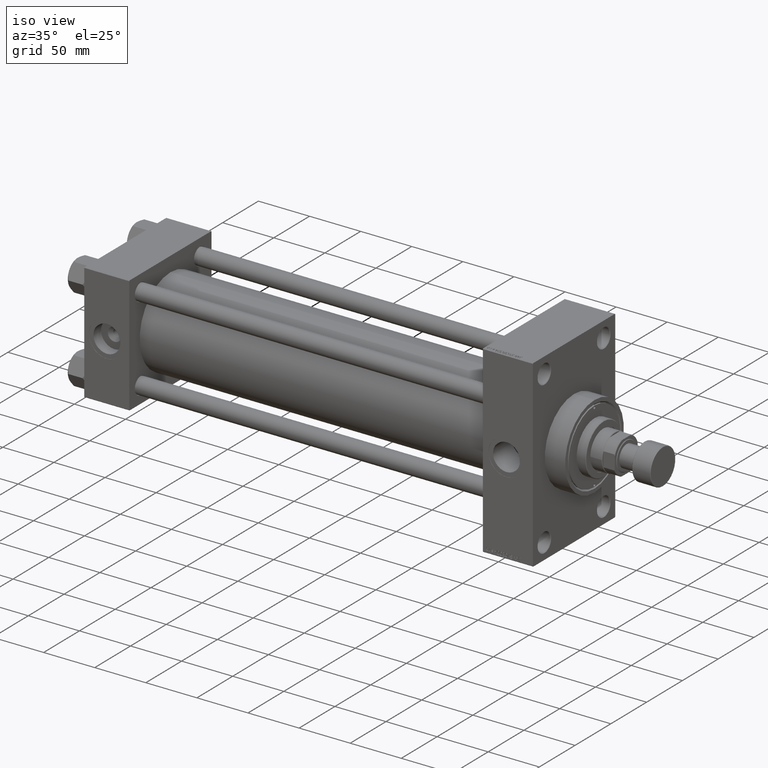
[diagram: clean part render]
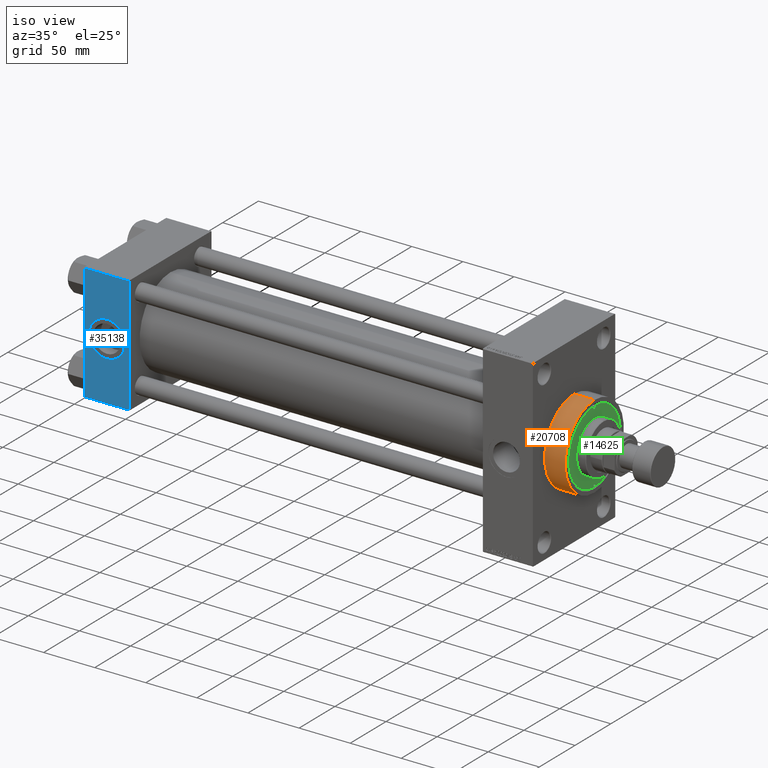
[diagram: same view with three faces highlighted in distinct colors, each labeled with its STEP entity id]
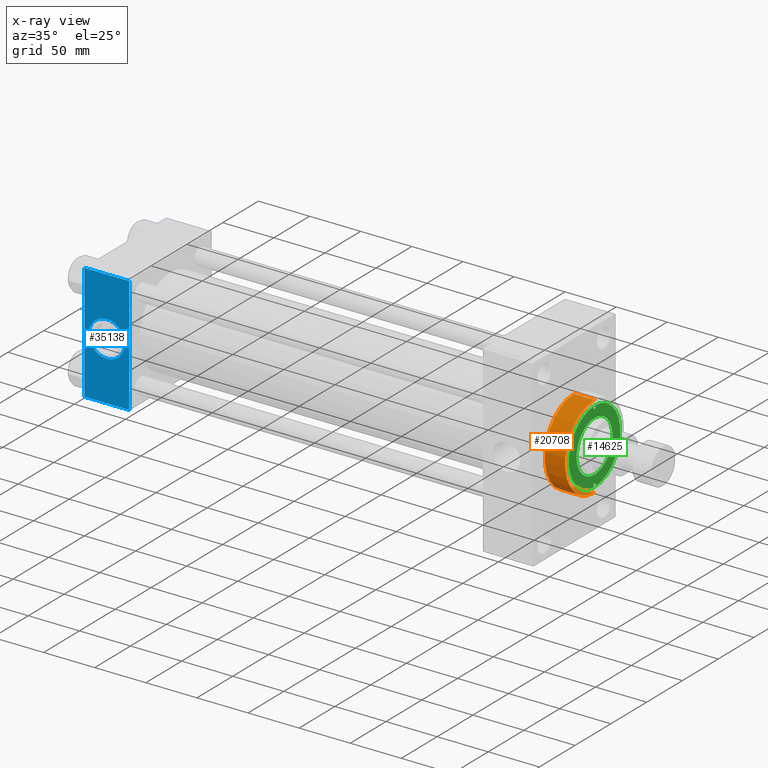
[diagram: x-ray of the same camera — body ghosted, the three highlighted faces saturated]
A machine part, iso view with three faces highlighted in distinct colors.
The next image is the same camera in x-ray (body ghosted, the three faces saturated) — at least one of them is partly hidden behind the body in this view.
Their STEP definitions:

[orange] entity #20708 — the highlighted cylindrical surface (partial cylindrical patch) has radius 41 mm, axis along (-1, -0, -0).
#668 = ORIENTED_EDGE ( 'NONE', *, *, #40381, .F. ) ;
#1769 = DIRECTION ( 'NONE',  ( 0.000000000000000000, 0.000000000000000000, -1.000000000000000000 ) ) ;
#3361 = EDGE_CURVE ( 'NONE', #35525, #23712, #6730, .T. ) ;
#6730 = CIRCLE ( 'NONE', #34049, 41.00000000000000000 ) ;
#8056 = CIRCLE ( 'NONE', #10404, 41.00000000000000000 ) ;
#10308 = VERTEX_POINT ( 'NONE', #10576 ) ;
#10404 = AXIS2_PLACEMENT_3D ( 'NONE', #20833, #38691, #1769 ) ;
#10541 = DIRECTION ( 'NONE',  ( 1.000000000000000000, 0.000000000000000000, 0.000000000000000000 ) ) ;
#10576 = CARTESIAN_POINT ( 'NONE',  ( 458.9999999999999432, 0.000000000000000000, 41.00000000000000000 ) ) ;
#11253 = DIRECTION ( 'NONE',  ( 0.000000000000000000, 0.000000000000000000, -1.000000000000000000 ) ) ;
#11438 = ORIENTED_EDGE ( 'NONE', *, *, #3361, .T. ) ;
#11854 = LINE ( 'NONE', #31152, #43428 ) ;
#14266 = VECTOR ( 'NONE', #36025, 1000.000000000000000 ) ;
#20708 = ADVANCED_FACE ( 'NONE', ( #26117 ), #26595, .T. ) ;
#20833 = CARTESIAN_POINT ( 'NONE',  ( 458.9999999999999432, 0.000000000000000000, 0.000000000000000000 ) ) ;
#20851 = VERTEX_POINT ( 'NONE', #28294 ) ;
#20883 = CARTESIAN_POINT ( 'NONE',  ( 458.9999999999999432, 5.021051876504148963E-15, -41.00000000000000000 ) ) ;
#21763 = CARTESIAN_POINT ( 'NONE',  ( 438.9999999999999432, 0.000000000000000000, 0.000000000000000000 ) ) ;
#22450 = CARTESIAN_POINT ( 'NONE',  ( 458.9999999999999432, 0.000000000000000000, 0.000000000000000000 ) ) ;
#22687 = DIRECTION ( 'NONE',  ( -1.000000000000000000, -0.000000000000000000, -0.000000000000000000 ) ) ;
#23255 = ORIENTED_EDGE ( 'NONE', *, *, #40680, .F. ) ;
#23712 = VERTEX_POINT ( 'NONE', #32615 ) ;
#24198 = ORIENTED_EDGE ( 'NONE', *, *, #47370, .T. ) ;
#25910 = CARTESIAN_POINT ( 'NONE',  ( 438.9999999999999432, 0.000000000000000000, 41.00000000000000000 ) ) ;
#26117 = FACE_OUTER_BOUND ( 'NONE', #41275, .T. ) ;
#26595 = CYLINDRICAL_SURFACE ( 'NONE', #40944, 41.00000000000000000 ) ;
#28294 = CARTESIAN_POINT ( 'NONE',  ( 458.9999999999999432, 5.021051876504148963E-15, -41.00000000000000000 ) ) ;
#31152 = CARTESIAN_POINT ( 'NONE',  ( 458.9999999999999432, 0.000000000000000000, 41.00000000000000000 ) ) ;
#32615 = CARTESIAN_POINT ( 'NONE',  ( 438.9999999999999432, 5.021051876504148963E-15, -41.00000000000000000 ) ) ;
#34049 = AXIS2_PLACEMENT_3D ( 'NONE', #21763, #10541, #11253 ) ;
#35525 = VERTEX_POINT ( 'NONE', #25910 ) ;
#36025 = DIRECTION ( 'NONE',  ( -1.000000000000000000, -0.000000000000000000, -0.000000000000000000 ) ) ;
#37609 = DIRECTION ( 'NONE',  ( 0.000000000000000000, 0.000000000000000000, 1.000000000000000000 ) ) ;
#38691 = DIRECTION ( 'NONE',  ( 1.000000000000000000, 0.000000000000000000, 0.000000000000000000 ) ) ;
#39701 = LINE ( 'NONE', #20883, #14266 ) ;
#40381 = EDGE_CURVE ( 'NONE', #20851, #23712, #39701, .T. ) ;
#40680 = EDGE_CURVE ( 'NONE', #10308, #20851, #8056, .T. ) ;
#40944 = AXIS2_PLACEMENT_3D ( 'NONE', #22450, #22687, #37609 ) ;
#41275 = EDGE_LOOP ( 'NONE', ( #668, #23255, #24198, #11438 ) ) ;
#42171 = DIRECTION ( 'NONE',  ( -1.000000000000000000, -0.000000000000000000, -0.000000000000000000 ) ) ;
#43428 = VECTOR ( 'NONE', #42171, 1000.000000000000000 ) ;
#47370 = EDGE_CURVE ( 'NONE', #10308, #35525, #11854, .T. ) ;

[blue] entity #35138 — the highlighted planar face has unit normal (0, 1, 0).
#333 = CIRCLE ( 'NONE', #37013, 17.50000000000000000 ) ;
#924 = CARTESIAN_POINT ( 'NONE',  ( 0.000000000000000000, -57.50000000000000711, 57.00000000000000711 ) ) ;
#1328 = LINE ( 'NONE', #16970, #44609 ) ;
#1760 = AXIS2_PLACEMENT_3D ( 'NONE', #3243, #36736, #33065 ) ;
#2125 = AXIS2_PLACEMENT_3D ( 'NONE', #7798, #14659, #22701 ) ;
#2180 = EDGE_CURVE ( 'NONE', #7587, #27227, #36262, .T. ) ;
#3243 = CARTESIAN_POINT ( 'NONE',  ( 44.00000000000000000, -57.50000000000000711, 57.49999999999999289 ) ) ;
#4780 = VECTOR ( 'NONE', #47800, 1000.000000000000000 ) ;
#5966 = CARTESIAN_POINT ( 'NONE',  ( 44.00000000000000000, -57.50000000000000711, -57.00000000000000711 ) ) ;
#7114 = CARTESIAN_POINT ( 'NONE',  ( 22.00000000000000000, -57.50000000000000711, 0.000000000000000000 ) ) ;
#7572 = ORIENTED_EDGE ( 'NONE', *, *, #12123, .T. ) ;
#7587 = VERTEX_POINT ( 'NONE', #32153 ) ;
#7798 = CARTESIAN_POINT ( 'NONE',  ( 22.00000000000000000, -57.50000000000000711, 0.000000000000000000 ) ) ;
#7880 = FACE_BOUND ( 'NONE', #37196, .T. ) ;
#10230 = EDGE_CURVE ( 'NONE', #23224, #7587, #1328, .T. ) ;
#11019 = VERTEX_POINT ( 'NONE', #33169 ) ;
#12123 = EDGE_CURVE ( 'NONE', #18617, #23224, #22362, .T. ) ;
#12568 = DIRECTION ( 'NONE',  ( 0.000000000000000000, 0.000000000000000000, -1.000000000000000000 ) ) ;
#14659 = DIRECTION ( 'NONE',  ( 0.000000000000000000, -1.000000000000000000, -8.673617379884036705E-17 ) ) ;
#15034 = CARTESIAN_POINT ( 'NONE',  ( 44.00000000000000000, -57.50000000000000711, 57.00000000000000711 ) ) ;
#16970 = CARTESIAN_POINT ( 'NONE',  ( 0.000000000000000000, -57.50000000000000711, 57.49999999999999289 ) ) ;
#18170 = FACE_OUTER_BOUND ( 'NONE', #35352, .T. ) ;
#18617 = VERTEX_POINT ( 'NONE', #38083 ) ;
#18682 = CARTESIAN_POINT ( 'NONE',  ( 44.00000000000000000, -57.50000000000000711, 57.49999999999999289 ) ) ;
#21470 = ORIENTED_EDGE ( 'NONE', *, *, #10230, .T. ) ;
#21815 = PLANE ( 'NONE',  #1760 ) ;
#22022 = DIRECTION ( 'NONE',  ( 0.000000000000000000, -1.000000000000000000, -8.673617379884036705E-17 ) ) ;
#22362 = LINE ( 'NONE', #15034, #4780 ) ;
#22701 = DIRECTION ( 'NONE',  ( 0.000000000000000000, 0.000000000000000000, -1.000000000000000000 ) ) ;
#23224 = VERTEX_POINT ( 'NONE', #924 ) ;
#24628 = VECTOR ( 'NONE', #36018, 1000.000000000000000 ) ;
#26650 = EDGE_CURVE ( 'NONE', #18617, #27227, #32665, .T. ) ;
#27052 = ORIENTED_EDGE ( 'NONE', *, *, #26650, .F. ) ;
#27227 = VERTEX_POINT ( 'NONE', #47956 ) ;
#27286 = CARTESIAN_POINT ( 'NONE',  ( 22.00000000000000000, -57.50000000000000711, -17.50000000000000000 ) ) ;
#29994 = ORIENTED_EDGE ( 'NONE', *, *, #2180, .T. ) ;
#30068 = EDGE_CURVE ( 'NONE', #11019, #44879, #37245, .T. ) ;
#32153 = CARTESIAN_POINT ( 'NONE',  ( 0.000000000000000000, -57.50000000000000711, -57.00000000000000711 ) ) ;
#32665 = LINE ( 'NONE', #18682, #37917 ) ;
#33065 = DIRECTION ( 'NONE',  ( 0.000000000000000000, -0.000000000000000000, 1.000000000000000000 ) ) ;
#33169 = CARTESIAN_POINT ( 'NONE',  ( 22.00000000000000355, -57.50000000000000711, 17.50000000000000000 ) ) ;
#35138 = ADVANCED_FACE ( 'NONE', ( #7880, #18170 ), #21815, .F. ) ;
#35352 = EDGE_LOOP ( 'NONE', ( #21470, #29994, #27052, #7572 ) ) ;
#36018 = DIRECTION ( 'NONE',  ( 1.000000000000000000, 0.000000000000000000, 0.000000000000000000 ) ) ;
#36262 = LINE ( 'NONE', #5966, #24628 ) ;
#36736 = DIRECTION ( 'NONE',  ( -0.000000000000000000, 1.000000000000000000, 0.000000000000000000 ) ) ;
#37013 = AXIS2_PLACEMENT_3D ( 'NONE', #7114, #22022, #47946 ) ;
#37196 = EDGE_LOOP ( 'NONE', ( #39288, #47137 ) ) ;
#37245 = CIRCLE ( 'NONE', #2125, 17.50000000000000000 ) ;
#37917 = VECTOR ( 'NONE', #43467, 1000.000000000000000 ) ;
#38083 = CARTESIAN_POINT ( 'NONE',  ( 44.00000000000000000, -57.50000000000000711, 57.00000000000000711 ) ) ;
#39288 = ORIENTED_EDGE ( 'NONE', *, *, #43312, .F. ) ;
#43312 = EDGE_CURVE ( 'NONE', #44879, #11019, #333, .T. ) ;
#43467 = DIRECTION ( 'NONE',  ( 0.000000000000000000, 0.000000000000000000, -1.000000000000000000 ) ) ;
#44609 = VECTOR ( 'NONE', #12568, 1000.000000000000000 ) ;
#44879 = VERTEX_POINT ( 'NONE', #27286 ) ;
#47137 = ORIENTED_EDGE ( 'NONE', *, *, #30068, .F. ) ;
#47800 = DIRECTION ( 'NONE',  ( -1.000000000000000000, 0.000000000000000000, 0.000000000000000000 ) ) ;
#47946 = DIRECTION ( 'NONE',  ( 0.000000000000000000, 0.000000000000000000, -1.000000000000000000 ) ) ;
#47956 = CARTESIAN_POINT ( 'NONE',  ( 44.00000000000000000, -57.50000000000000711, -57.00000000000000711 ) ) ;

[green] entity #14625 — the highlighted planar face has unit normal (1, -0, -0).
#697 = ORIENTED_EDGE ( 'NONE', *, *, #13231, .F. ) ;
#1291 = EDGE_CURVE ( 'NONE', #46366, #35147, #8198, .T. ) ;
#2061 = DIRECTION ( 'NONE',  ( 0.000000000000000000, 0.000000000000000000, 1.000000000000000000 ) ) ;
#2264 = ORIENTED_EDGE ( 'NONE', *, *, #1291, .F. ) ;
#3584 = CIRCLE ( 'NONE', #34053, 1.250000000000001110 ) ;
#4026 = CIRCLE ( 'NONE', #34469, 36.00000000000000000 ) ;
#4673 = EDGE_CURVE ( 'NONE', #25988, #20717, #24942, .T. ) ;
#4841 = AXIS2_PLACEMENT_3D ( 'NONE', #10020, #13921, #28104 ) ;
#5086 = CIRCLE ( 'NONE', #40972, 36.00000000000000000 ) ;
#5420 = CARTESIAN_POINT ( 'NONE',  ( -34.25000000000000000, 0.000000000000000000, 43.25999999999999801 ) ) ;
#5851 = ORIENTED_EDGE ( 'NONE', *, *, #10251, .T. ) ;
#6536 = CARTESIAN_POINT ( 'NONE',  ( 36.00000000000000000, 4.408728476930470856E-15, 43.25999999999999801 ) ) ;
#6579 = FACE_BOUND ( 'NONE', #45395, .T. ) ;
#8198 = CIRCLE ( 'NONE', #19154, 25.00000000000000000 ) ;
#8937 = CARTESIAN_POINT ( 'NONE',  ( 0.000000000000000000, 0.000000000000000000, 43.25999999999999801 ) ) ;
#10020 = CARTESIAN_POINT ( 'NONE',  ( 0.000000000000000000, 0.000000000000000000, 43.25999999999999801 ) ) ;
#10251 = EDGE_CURVE ( 'NONE', #27882, #42430, #4026, .T. ) ;
#10913 = DIRECTION ( 'NONE',  ( -0.000000000000000000, -0.000000000000000000, 1.000000000000000000 ) ) ;
#10929 = DIRECTION ( 'NONE',  ( 1.000000000000000000, 0.000000000000000000, 0.000000000000000000 ) ) ;
#13231 = EDGE_CURVE ( 'NONE', #35147, #46366, #40697, .T. ) ;
#13354 = CARTESIAN_POINT ( 'NONE',  ( 34.25000000000000000, 0.000000000000000000, 43.25999999999999801 ) ) ;
#13587 = CARTESIAN_POINT ( 'NONE',  ( -25.00000000000000000, 0.000000000000000000, 43.25999999999999801 ) ) ;
#13921 = DIRECTION ( 'NONE',  ( 0.000000000000000000, 0.000000000000000000, 1.000000000000000000 ) ) ;
#14625 = ADVANCED_FACE ( 'NONE', ( #6579, #39834, #46704, #20785 ), #35698, .T. ) ;
#16586 = ORIENTED_EDGE ( 'NONE', *, *, #25414, .T. ) ;
#17441 = DIRECTION ( 'NONE',  ( 1.000000000000000000, 0.000000000000000000, 0.000000000000000000 ) ) ;
#17912 = CARTESIAN_POINT ( 'NONE',  ( 0.000000000000000000, 0.000000000000000000, 43.25999999999999801 ) ) ;
#18532 = ORIENTED_EDGE ( 'NONE', *, *, #31136, .F. ) ;
#18633 = CARTESIAN_POINT ( 'NONE',  ( 35.50000000000000711, 0.000000000000000000, 43.25999999999999801 ) ) ;
#19154 = AXIS2_PLACEMENT_3D ( 'NONE', #21095, #2061, #35543 ) ;
#20717 = VERTEX_POINT ( 'NONE', #39071 ) ;
#20785 = FACE_OUTER_BOUND ( 'NONE', #34428, .T. ) ;
#21095 = CARTESIAN_POINT ( 'NONE',  ( 0.000000000000000000, 0.000000000000000000, 43.25999999999999801 ) ) ;
#22240 = VERTEX_POINT ( 'NONE', #46316 ) ;
#22894 = DIRECTION ( 'NONE',  ( -0.000000000000000000, -0.000000000000000000, 1.000000000000000000 ) ) ;
#22917 = EDGE_LOOP ( 'NONE', ( #2264, #697 ) ) ;
#24081 = DIRECTION ( 'NONE',  ( 0.000000000000000000, 0.000000000000000000, 1.000000000000000000 ) ) ;
#24224 = DIRECTION ( 'NONE',  ( 1.000000000000000000, 0.000000000000000000, 0.000000000000000000 ) ) ;
#24942 = CIRCLE ( 'NONE', #29590, 1.250000000000001110 ) ;
#24997 = VERTEX_POINT ( 'NONE', #18633 ) ;
#25414 = EDGE_CURVE ( 'NONE', #42430, #27882, #5086, .T. ) ;
#25988 = VERTEX_POINT ( 'NONE', #35985 ) ;
#26608 = DIRECTION ( 'NONE',  ( 1.000000000000000000, 0.000000000000000000, 0.000000000000000000 ) ) ;
#27018 = DIRECTION ( 'NONE',  ( 1.000000000000000000, 0.000000000000000000, 0.000000000000000000 ) ) ;
#27517 = CARTESIAN_POINT ( 'NONE',  ( -36.00000000000000000, 0.000000000000000000, 43.25999999999999801 ) ) ;
#27847 = EDGE_CURVE ( 'NONE', #22240, #24997, #44194, .T. ) ;
#27882 = VERTEX_POINT ( 'NONE', #6536 ) ;
#28104 = DIRECTION ( 'NONE',  ( 1.000000000000000000, 0.000000000000000000, -0.000000000000000000 ) ) ;
#28969 = DIRECTION ( 'NONE',  ( 1.000000000000000000, 0.000000000000000000, 0.000000000000000000 ) ) ;
#29496 = CARTESIAN_POINT ( 'NONE',  ( -34.25000000000000000, 0.000000000000000000, 43.25999999999999801 ) ) ;
#29590 = AXIS2_PLACEMENT_3D ( 'NONE', #5420, #43048, #24224 ) ;
#29621 = CARTESIAN_POINT ( 'NONE',  ( 25.00000000000000000, 3.061616997868383043E-15, 43.25999999999999801 ) ) ;
#31136 = EDGE_CURVE ( 'NONE', #20717, #25988, #31155, .T. ) ;
#31155 = CIRCLE ( 'NONE', #45170, 1.250000000000001110 ) ;
#32318 = DIRECTION ( 'NONE',  ( 0.000000000000000000, 0.000000000000000000, 1.000000000000000000 ) ) ;
#32914 = CARTESIAN_POINT ( 'NONE',  ( 34.25000000000000000, 0.000000000000000000, 43.25999999999999801 ) ) ;
#33158 = DIRECTION ( 'NONE',  ( 1.000000000000000000, 0.000000000000000000, 0.000000000000000000 ) ) ;
#33233 = CARTESIAN_POINT ( 'NONE',  ( 0.000000000000000000, 0.000000000000000000, 43.25999999999999801 ) ) ;
#33674 = AXIS2_PLACEMENT_3D ( 'NONE', #8937, #24081, #27018 ) ;
#34053 = AXIS2_PLACEMENT_3D ( 'NONE', #13354, #35843, #28969 ) ;
#34428 = EDGE_LOOP ( 'NONE', ( #16586, #5851 ) ) ;
#34469 = AXIS2_PLACEMENT_3D ( 'NONE', #17912, #32318, #17441 ) ;
#35147 = VERTEX_POINT ( 'NONE', #29621 ) ;
#35543 = DIRECTION ( 'NONE',  ( 1.000000000000000000, 0.000000000000000000, 0.000000000000000000 ) ) ;
#35698 = PLANE ( 'NONE',  #4841 ) ;
#35843 = DIRECTION ( 'NONE',  ( -0.000000000000000000, -0.000000000000000000, 1.000000000000000000 ) ) ;
#35985 = CARTESIAN_POINT ( 'NONE',  ( -33.00000000000000000, 0.000000000000000000, 43.25999999999999801 ) ) ;
#36409 = ORIENTED_EDGE ( 'NONE', *, *, #27847, .F. ) ;
#37988 = AXIS2_PLACEMENT_3D ( 'NONE', #32914, #10913, #33158 ) ;
#39071 = CARTESIAN_POINT ( 'NONE',  ( -35.50000000000000711, 1.530808498934193050E-16, 43.25999999999999801 ) ) ;
#39834 = FACE_BOUND ( 'NONE', #43221, .T. ) ;
#40559 = ORIENTED_EDGE ( 'NONE', *, *, #4673, .F. ) ;
#40697 = CIRCLE ( 'NONE', #33674, 25.00000000000000000 ) ;
#40862 = ORIENTED_EDGE ( 'NONE', *, *, #47199, .F. ) ;
#40972 = AXIS2_PLACEMENT_3D ( 'NONE', #33233, #45195, #26608 ) ;
#42430 = VERTEX_POINT ( 'NONE', #27517 ) ;
#43048 = DIRECTION ( 'NONE',  ( -0.000000000000000000, -0.000000000000000000, 1.000000000000000000 ) ) ;
#43221 = EDGE_LOOP ( 'NONE', ( #40862, #36409 ) ) ;
#44194 = CIRCLE ( 'NONE', #37988, 1.250000000000001110 ) ;
#45170 = AXIS2_PLACEMENT_3D ( 'NONE', #29496, #22894, #10929 ) ;
#45195 = DIRECTION ( 'NONE',  ( 0.000000000000000000, 0.000000000000000000, 1.000000000000000000 ) ) ;
#45395 = EDGE_LOOP ( 'NONE', ( #40559, #18532 ) ) ;
#46316 = CARTESIAN_POINT ( 'NONE',  ( 33.00000000000000000, 1.530808498934193050E-16, 43.25999999999999801 ) ) ;
#46366 = VERTEX_POINT ( 'NONE', #13587 ) ;
#46704 = FACE_BOUND ( 'NONE', #22917, .T. ) ;
#47199 = EDGE_CURVE ( 'NONE', #24997, #22240, #3584, .T. ) ;